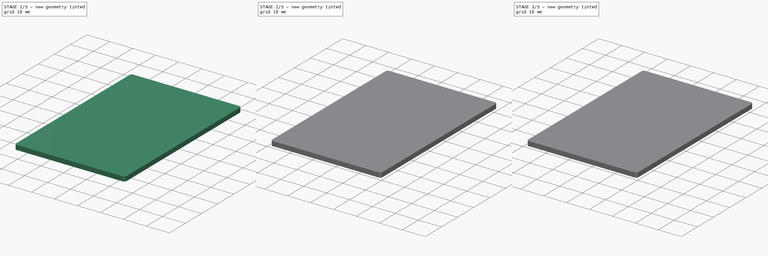
[diagram: build sequence overview — one tinted view per stage of 3, left to right]
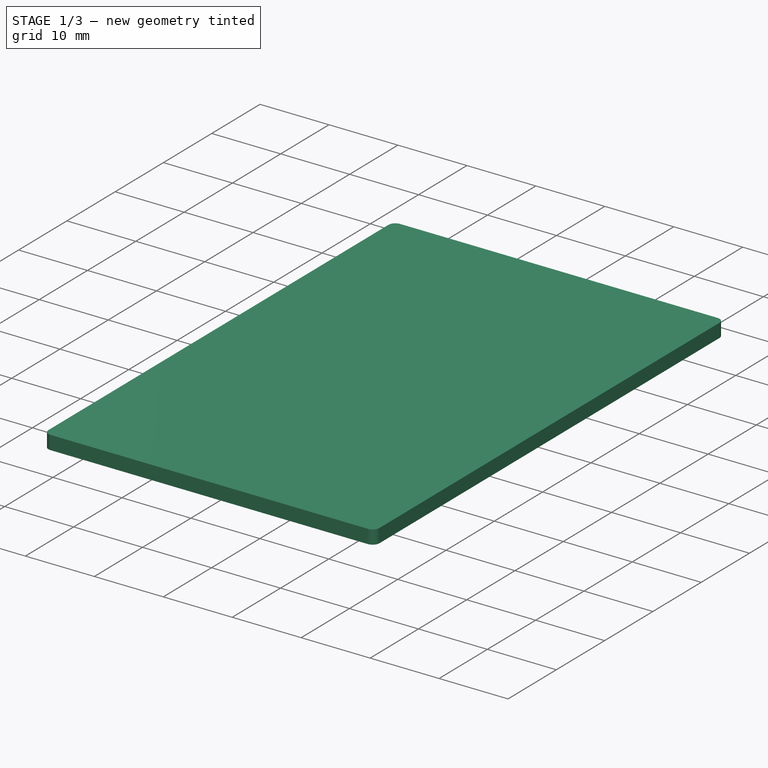
[diagram: stage 1 of 3 — iso view after this stage's code; geometry added in this stage tinted green]
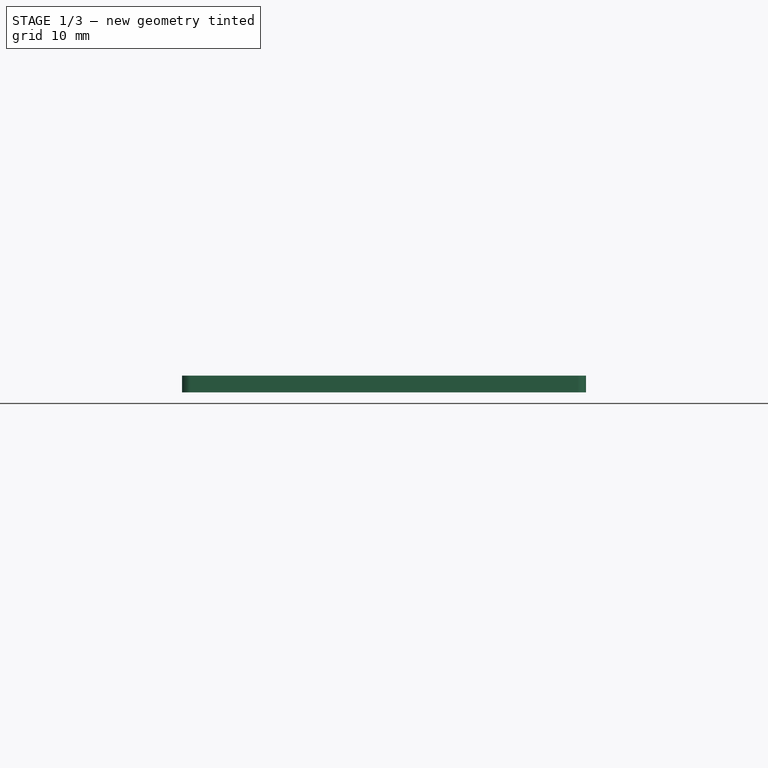
[diagram: stage 1 of 3 — front view after this stage's code; geometry added in this stage tinted green]
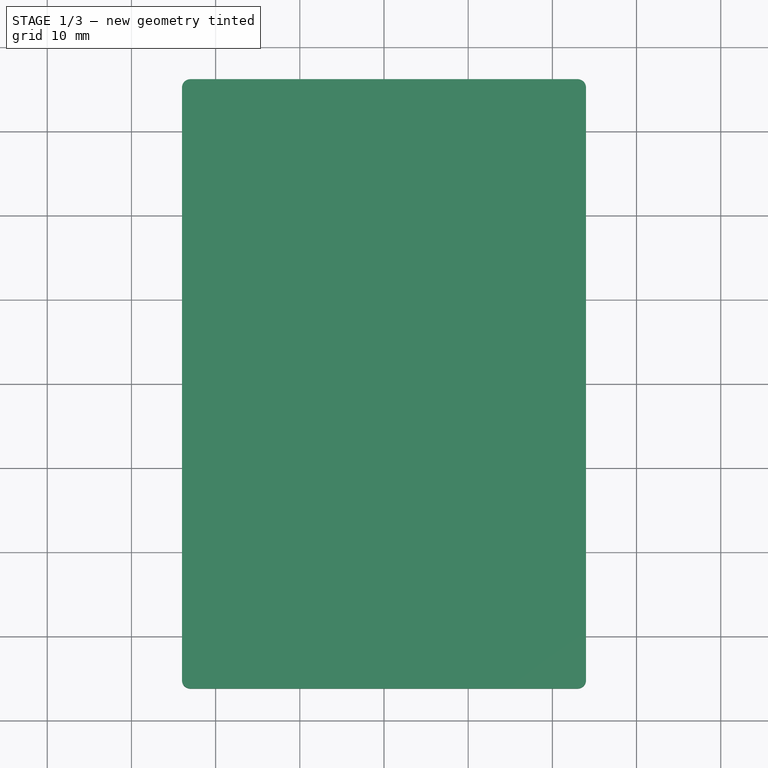
[diagram: stage 1 of 3 — top view after this stage's code; geometry added in this stage tinted green]
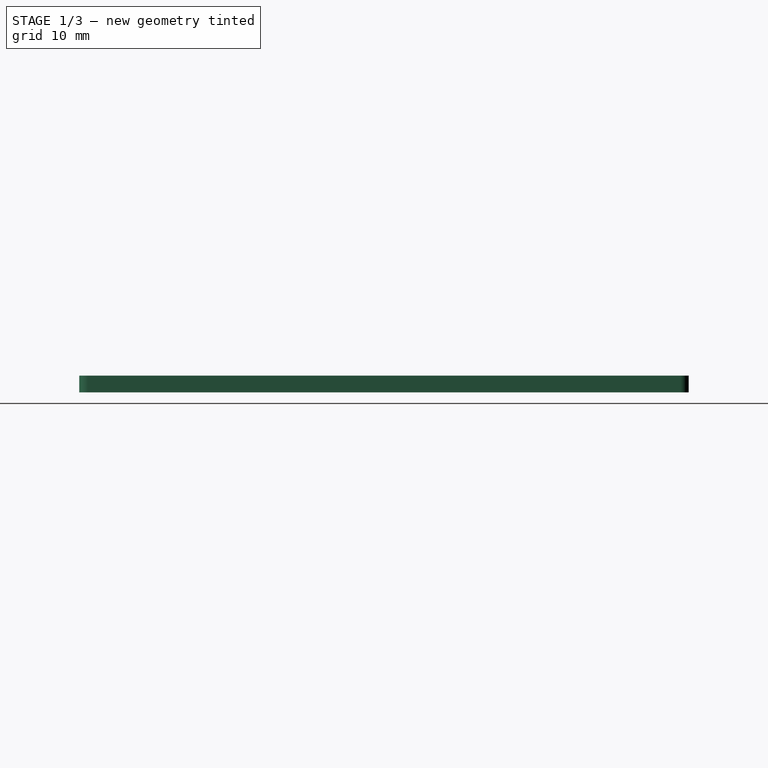
[diagram: stage 1 of 3 — right view after this stage's code; geometry added in this stage tinted green]
FCSTD DOCUMENT  (FreeCAD 0.15R4671 (Git))
Label: Couvercle
License: All rights reserved
LicenseURL: http://fr.wikipedia.org/wiki/<copyright redacted>
objects: Sketcher::SketchObject×5, PartDesign::Pad×3, PartDesign::Pocket×2, PartDesign::Fillet×1, Part::Mirroring×1
note: 17 computed .brp shape members not serialized (recipe doc carries the construction recipe); baked Part::Feature solids carry a one-line shape summary decoded from their .brp

FEATURE [Sketcher::SketchObject] Sketch
  sketch-geometry (4):
    g0: LineSegment StartX=-24 StartY=36.2 StartZ=0 EndX=24 EndY=36.2 EndZ=0
    g1: LineSegment StartX=24 StartY=36.2 StartZ=0 EndX=24 EndY=-36.2 EndZ=0
    g2: LineSegment StartX=24 StartY=-36.2 StartZ=0 EndX=-24 EndY=-36.2 EndZ=0
    g3: LineSegment StartX=-24 StartY=-36.2 StartZ=0 EndX=-24 EndY=36.2 EndZ=0
  constraints (12):
    c: Coincident(g0,g1)
    c: Coincident(g1,g2)
    c: Coincident(g2,g3)
    c: Coincident(g3,g0)
    c: Horizontal(g0)
    c: Horizontal(g2)
    c: Vertical(g1)
    c: Vertical(g3)
    c: DistanceX(g0) = 48
    c: DistanceY(g3) = 72.4
    c: Symmetric(g2,g1,g-2)
    c: Symmetric(g0,g2,g-1)
FEATURE [PartDesign::Pad] Pad  label="Couvercle principal"
  Length = 2
  Length2 = 100
  Sketch = -> Sketch
  Type = 0
FEATURE [PartDesign::Fillet] Fillet  label="Congé principal"
  Base = -> Pad [Edge1,Edge2,Edge5,Edge8]
  Radius = 1
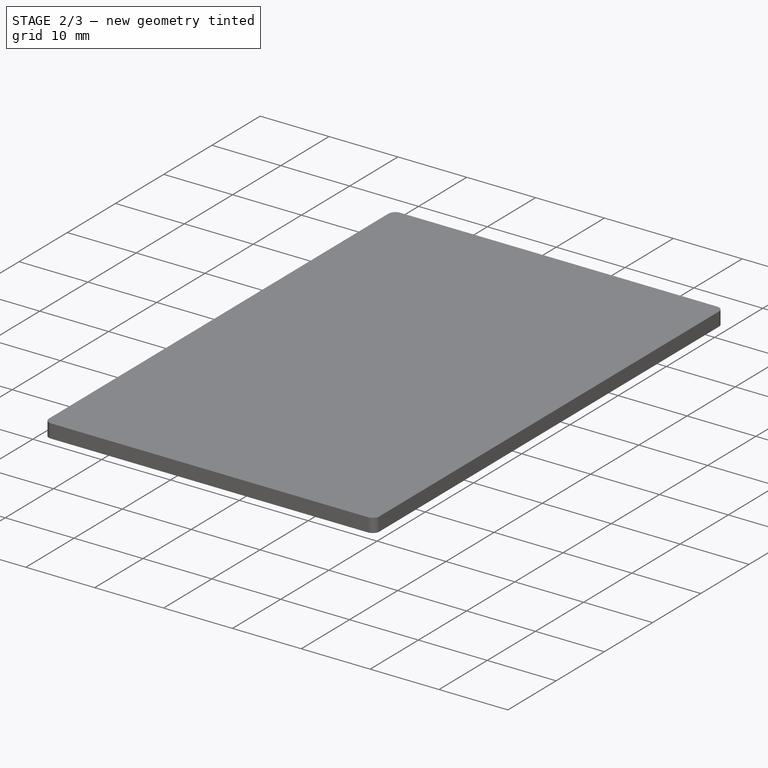
[diagram: stage 2 of 3 — iso view after this stage's code; geometry added in this stage tinted green]
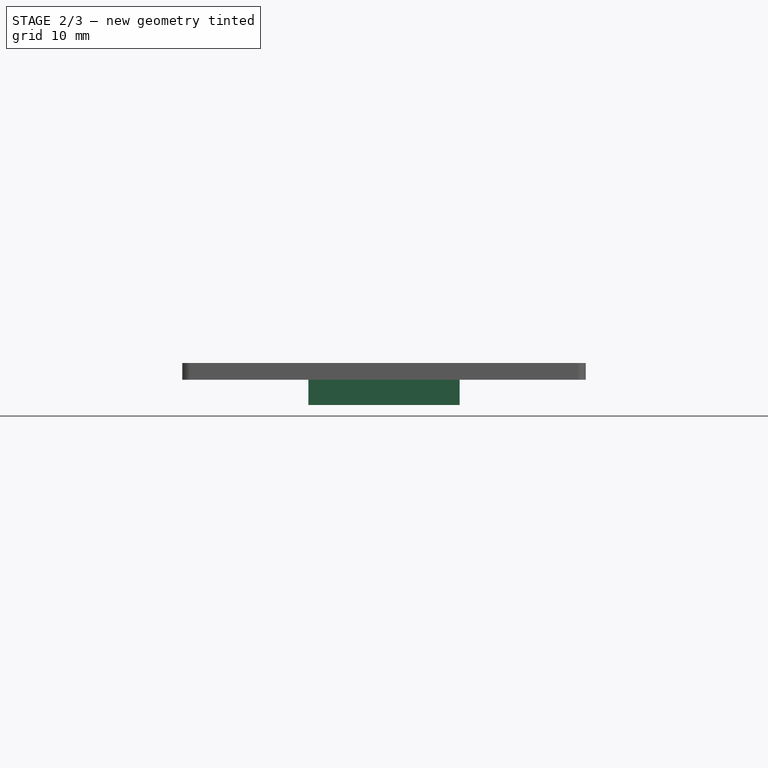
[diagram: stage 2 of 3 — front view after this stage's code; geometry added in this stage tinted green]
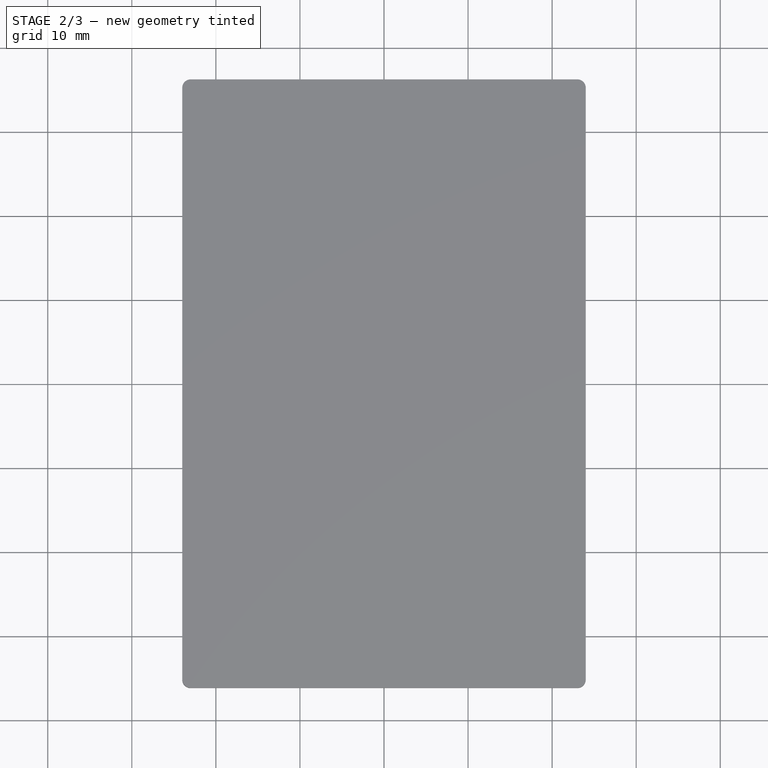
[diagram: stage 2 of 3 — top view after this stage's code; geometry added in this stage tinted green]
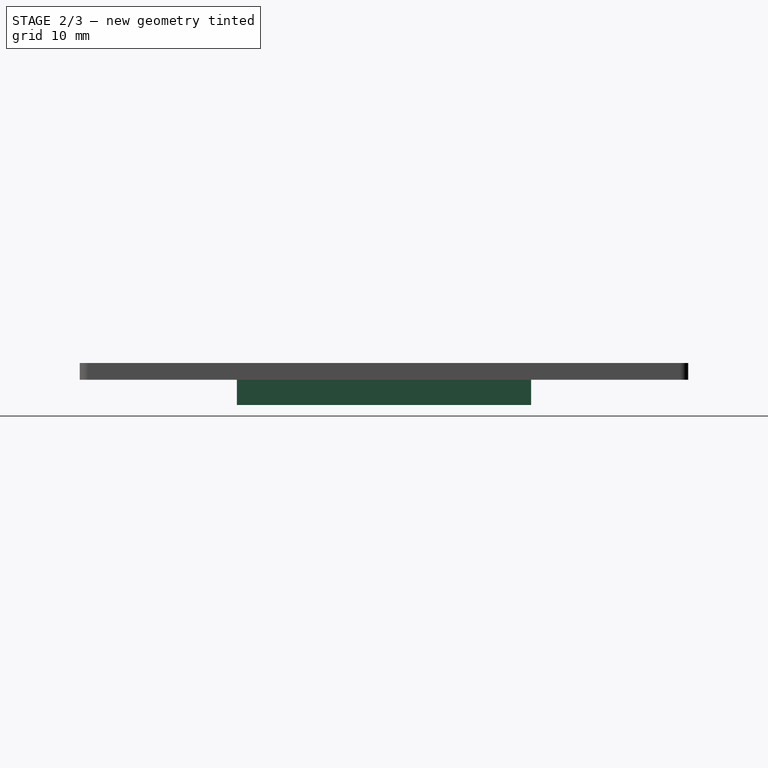
[diagram: stage 2 of 3 — right view after this stage's code; geometry added in this stage tinted green]
FEATURE [Sketcher::SketchObject] Sketch001
  Placement = pos=(0,0,0) rot=(1,0,0;3.14159rad)
  Support = -> Fillet [Face2]
  sketch-geometry (4):
    g0: LineSegment StartX=-9 StartY=17.5 StartZ=0 EndX=9 EndY=17.5 EndZ=0
    g1: LineSegment StartX=9 StartY=17.5 StartZ=0 EndX=9 EndY=-17.5 EndZ=0
    g2: LineSegment StartX=9 StartY=-17.5 StartZ=0 EndX=-9 EndY=-17.5 EndZ=0
    g3: LineSegment StartX=-9 StartY=-17.5 StartZ=0 EndX=-9 EndY=17.5 EndZ=0
  constraints (12):
    c: Coincident(g0,g1)
    c: Coincident(g1,g2)
    c: Coincident(g2,g3)
    c: Coincident(g3,g0)
    c: Horizontal(g0)
    c: Horizontal(g2)
    c: Vertical(g1)
    c: Vertical(g3)
    c: Symmetric(g0,g0,g-2)
    c: Symmetric(g1,g0,g-1)
    c: DistanceX(g0) = 18
    c: DistanceY(g3) = 35
FEATURE [PartDesign::Pad] Pad001  label="Base fixation"
  Length = 3
  Length2 = 100
  Sketch = -> Sketch001
  Type = 0
FEATURE [Sketcher::SketchObject] Sketch002
  ExternalGeometry = -> [Pad001]
  Placement = pos=(0,0,-3) rot=(1,0,0;3.14159rad)
  Support = -> Pad001 [Face1]
  sketch-geometry (4):
    g0: LineSegment StartX=-7 StartY=-0.5 StartZ=0 EndX=7 EndY=-0.5 EndZ=0
    g1: LineSegment StartX=7 StartY=-0.5 StartZ=0 EndX=7 EndY=-17.5 EndZ=0
    g2: LineSegment StartX=7 StartY=-17.5 StartZ=0 EndX=-7 EndY=-17.5 EndZ=0
    g3: LineSegment StartX=-7 StartY=-17.5 StartZ=0 EndX=-7 EndY=-0.5 EndZ=0
  constraints (12):
    c: Coincident(g0,g1)
    c: Coincident(g1,g2)
    c: Coincident(g2,g3)
    c: Coincident(g3,g0)
    c: Horizontal(g0)
    c: Horizontal(g2)
    c: Vertical(g1)
    c: Vertical(g3)
    c: PointOnObject(g1,g-5)
    c: DistanceX(g1,g-5) = 2
    c: DistanceX(g2,g-5) = -2
    c: DistanceY(g1) = -17
FEATURE [PartDesign::Pocket] Pocket  label="Porte fixation"
  Length = 1
  Sketch = -> Sketch002
  Type = 0
FEATURE [Sketcher::SketchObject] Sketch003
  ExternalGeometry = -> [Pocket]
  Placement = pos=(0,0,-2) rot=(1,0,0;3.14159rad)
  Support = -> Pocket [Face10]
  sketch-geometry (4):
    g0: LineSegment StartX=-3.5 StartY=-12 StartZ=0 EndX=3.5 EndY=-12 EndZ=0
    g1: LineSegment StartX=3.5 StartY=-12 StartZ=0 EndX=3.5 EndY=-16 EndZ=0
    g2: LineSegment StartX=3.5 StartY=-16 StartZ=0 EndX=-3.5 EndY=-16 EndZ=0
    g3: LineSegment StartX=-3.5 StartY=-16 StartZ=0 EndX=-3.5 EndY=-12 EndZ=0
  constraints (12):
    c: Coincident(g0,g1)
    c: Coincident(g1,g2)
    c: Coincident(g2,g3)
    c: Coincident(g3,g0)
    c: Horizontal(g0)
    c: Horizontal(g2)
    c: Vertical(g1)
    c: Vertical(g3)
    c: Symmetric(g0,g0,g-2)
    c: DistanceY(g-3,g1) = 1.5
    c: DistanceY(g1) = -4
    c: DistanceX(g0) = 7
FEATURE [PartDesign::Pocket] Pocket001  label="Trou de verouillage"
  Length = 1
  Sketch = -> Sketch003
  Type = 0
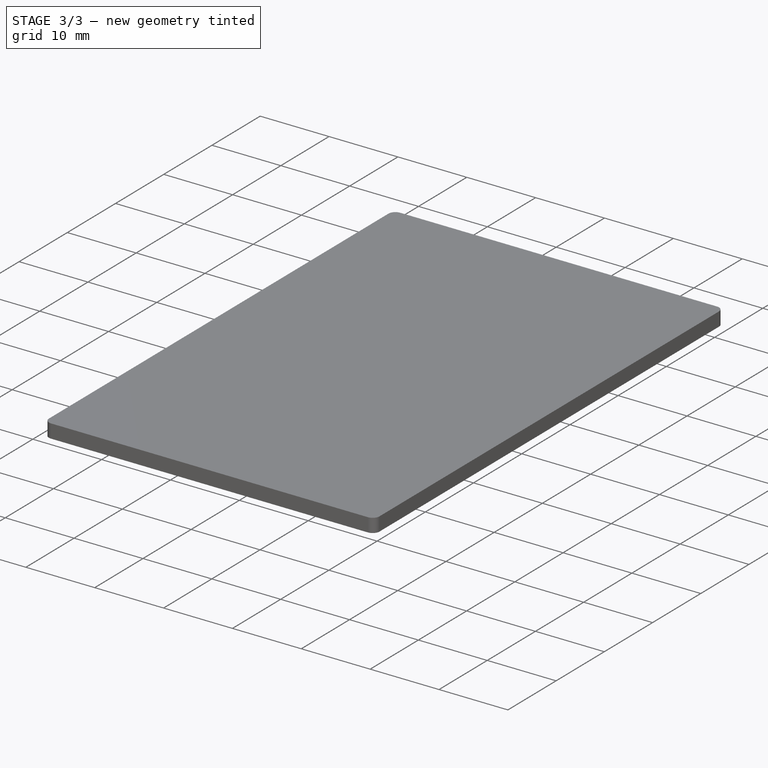
[diagram: stage 3 of 3 — iso view after this stage's code; geometry added in this stage tinted green]
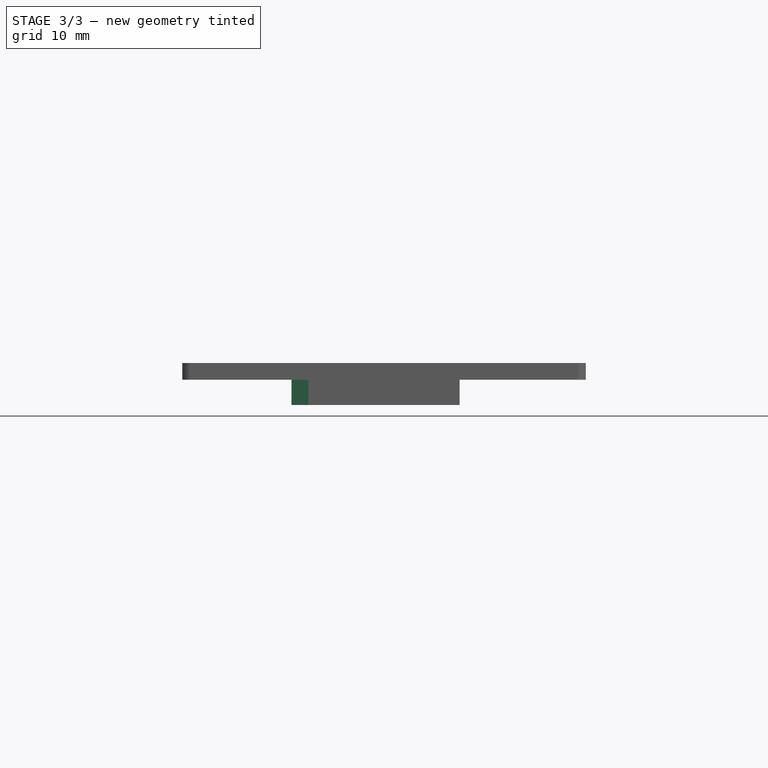
[diagram: stage 3 of 3 — front view after this stage's code; geometry added in this stage tinted green]
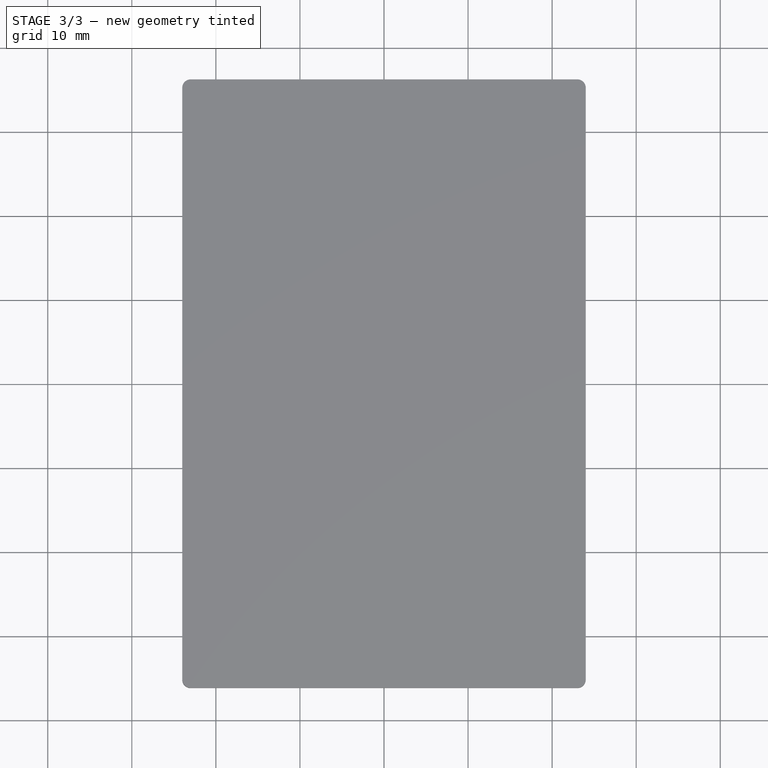
[diagram: stage 3 of 3 — top view after this stage's code; geometry added in this stage tinted green]
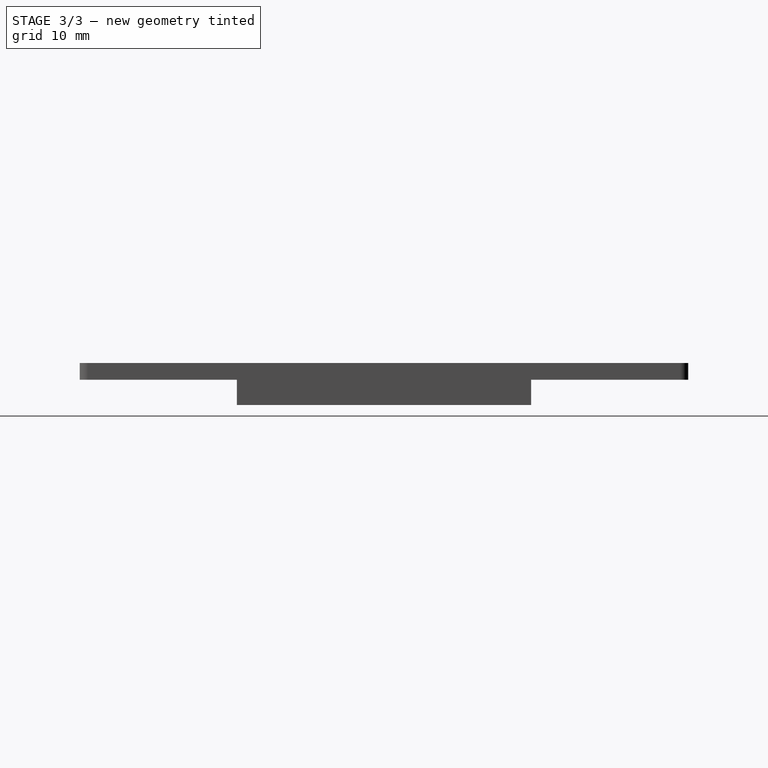
[diagram: stage 3 of 3 — right view after this stage's code; geometry added in this stage tinted green]
FEATURE [Sketcher::SketchObject] Sketch004
  ExternalGeometry = -> [Pocket001]
  Placement = pos=(9,0,0) rot=(0.57735,0.57735,0.57735;2.0944rad)
  Support = -> Pocket001 [Face3]
  sketch-geometry (6):
    g0: LineSegment StartX=15.5 StartY=-3 StartZ=0 EndX=15.5 EndY=-1.5 EndZ=0
    g1: LineSegment StartX=15.5 StartY=-1.5 StartZ=0 EndX=-6.5 EndY=-1.5 EndZ=0
    g2: LineSegment StartX=-6.5 StartY=-1.5 StartZ=0 EndX=-6.5 EndY=0 EndZ=0
    g3: LineSegment StartX=-6.5 StartY=0 StartZ=0 EndX=-17.5 EndY=0 EndZ=0
    g4: LineSegment StartX=-17.5 StartY=0 StartZ=0 EndX=-17.5 EndY=-3 EndZ=0
    g5: LineSegment StartX=-17.5 StartY=-3 StartZ=0 EndX=15.5 EndY=-3 EndZ=0
  constraints (17):
    c: PointOnObject(g0,g-3)
    c: Vertical(g0)
    c: Coincident(g0,g1)
    c: Horizontal(g1)
    c: Coincident(g1,g2)
    c: PointOnObject(g2,g-5)
    c: Vertical(g2)
    c: Coincident(g2,g3)
    c: PointOnObject(g3,g-4)
    c: Horizontal(g3)
    c: Coincident(g3,g4)
    c: Coincident(g4,g-4)
    c: Coincident(g4,g5)
    c: Coincident(g5,g0)
    c: DistanceY(g0) = 1.5
    c: DistanceX(g1) = -22
    c: DistanceX(g0,g-6) = 2
FEATURE [PartDesign::Pad] Pad002  label="Ailettes"
  Length = 2
  Length2 = 100
  Sketch = -> Sketch004
  Type = 0
FEATURE [Part::Mirroring] Part__Mirroring  label="Ailettes (Mirror #1)"
  Base = (0,0,0)
  Normal = (1,0,0)
  Source = -> Pad002
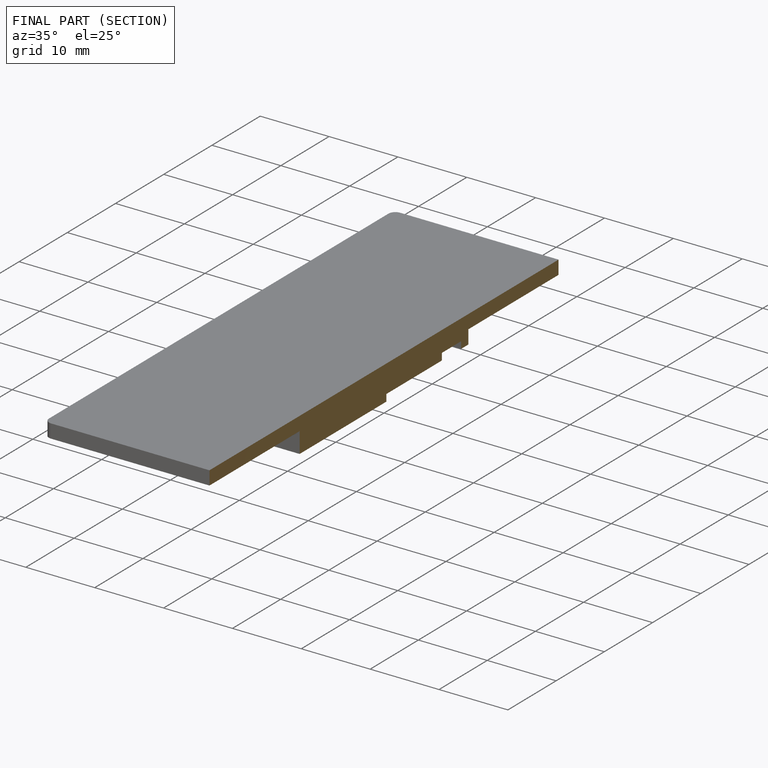
[diagram: finished part — half-section view (interior)]
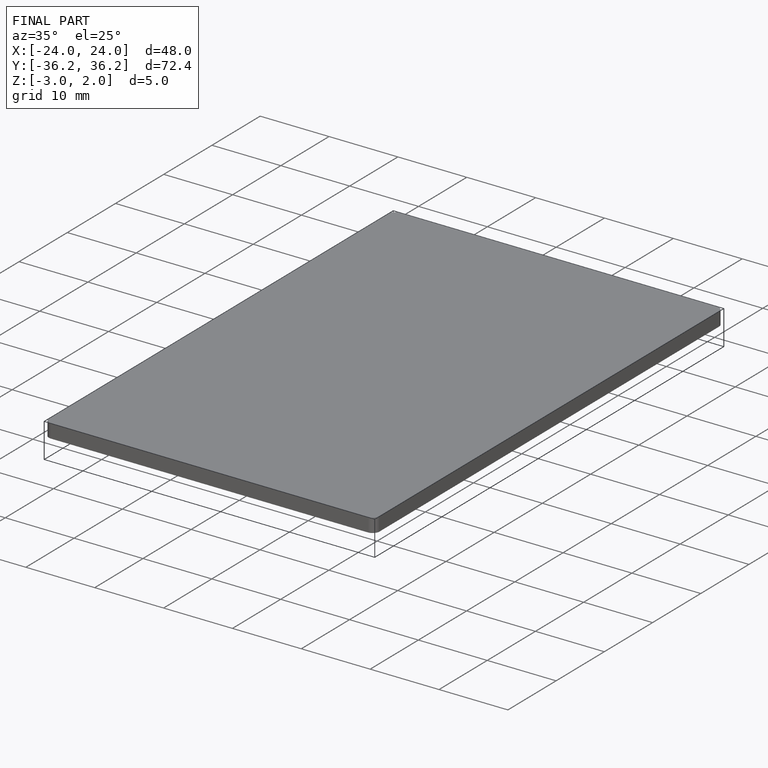
[diagram: finished part — iso view with bounding-box wireframe]
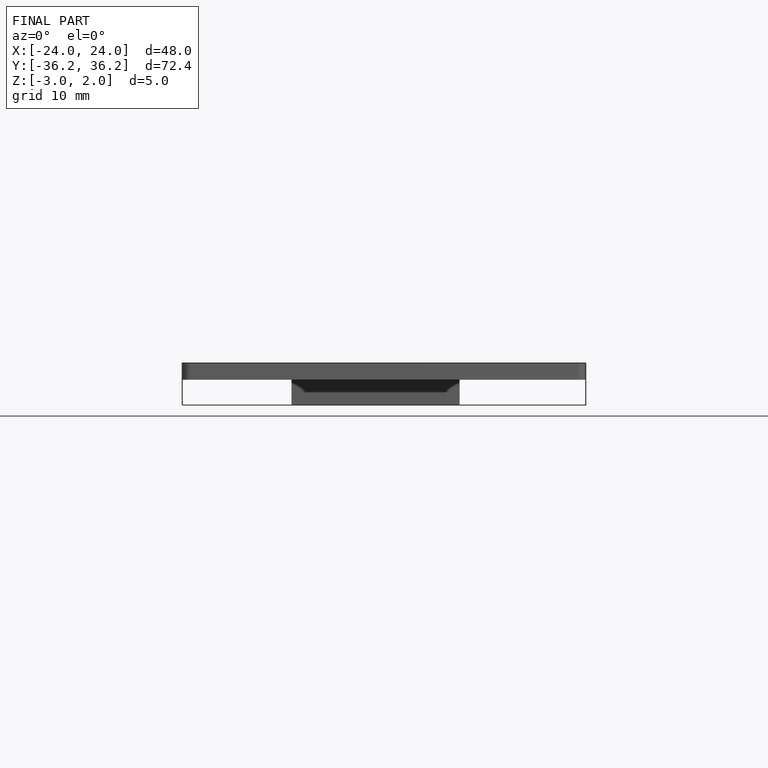
[diagram: finished part — front view with bounding-box wireframe]
